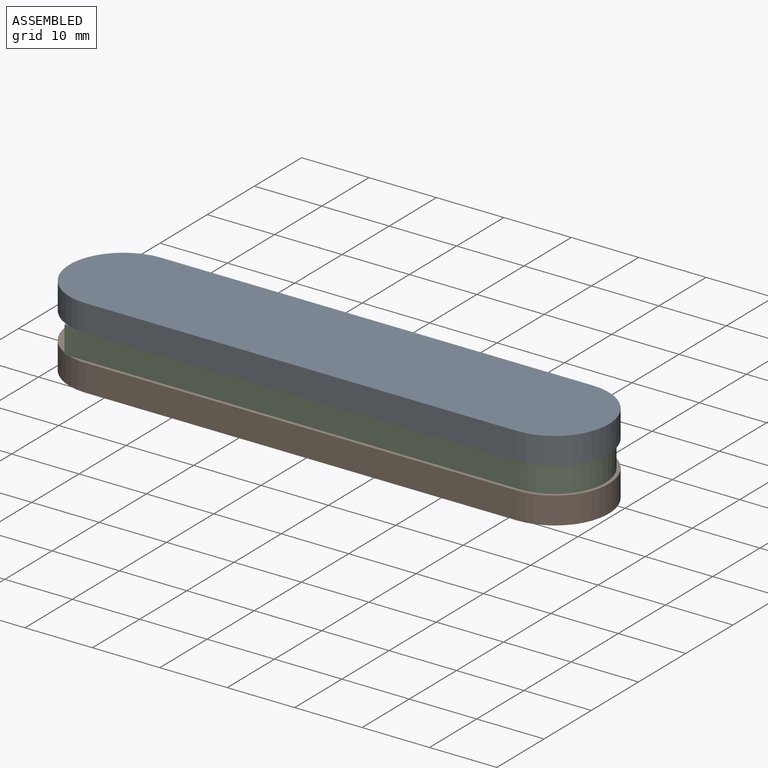
[diagram: assembled view]
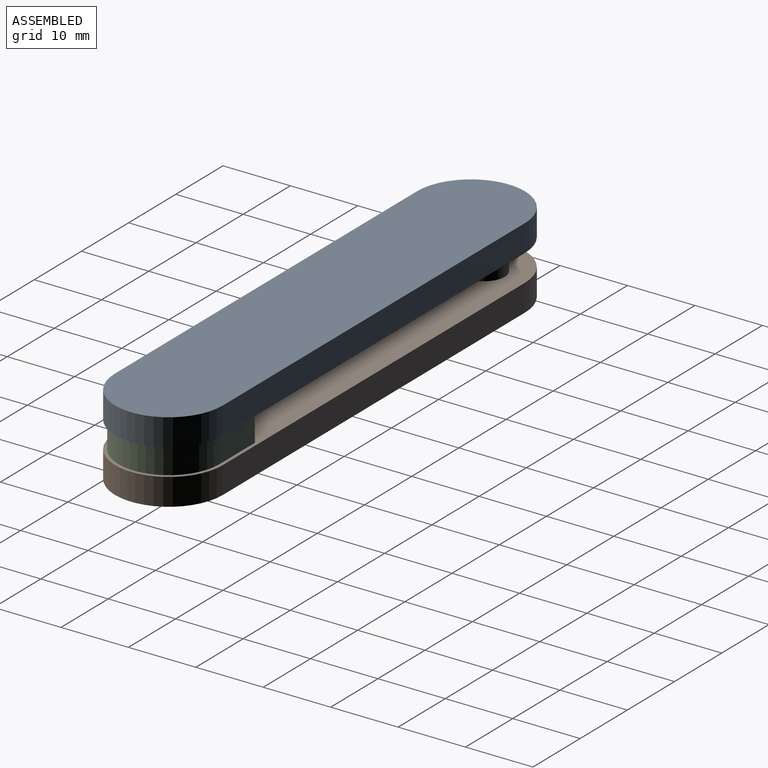
[diagram: assembled view, second angle]
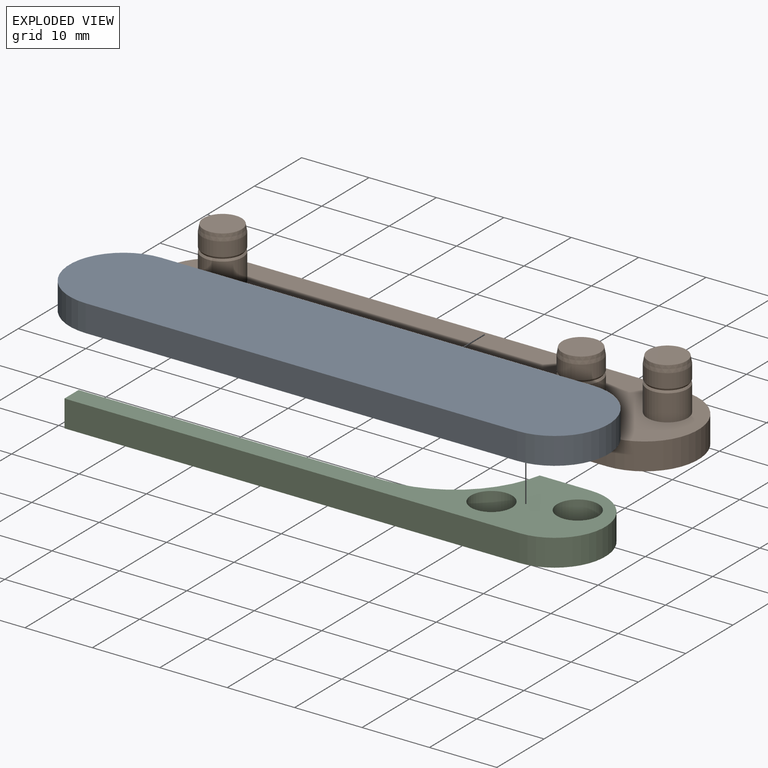
[diagram: exploded view]
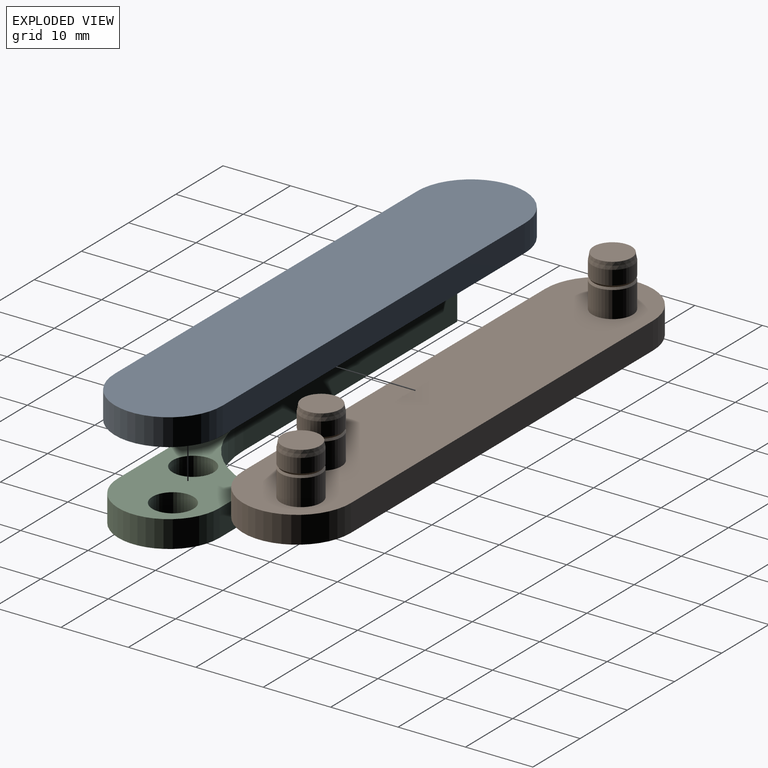
[diagram: exploded view, second angle]
ASSEMBLY  parts=3 mates=4
PART A: 12 faces, bbox 80x16x4 mm
  f0: plane 64x4mm, normal (0,1,0), area 256mm2, adj f1,f3,f4,f5
  f1: cylinder r=8mm len=16mm, axis (0,0,-1), area 100.5mm2, adj f0,f2,f4,f5
  f2: plane 64x4mm, normal (0,-1,0), area 256mm2, adj f1,f3,f4,f5
  f3: cylinder r=8mm len=16mm, axis (0,0,-1), area 100.5mm2, adj f0,f2,f4,f5
  f4: plane 80x16mm, normal (0,0,1), area 1225.1mm2, adj f0,f1,f2,f3
  f5: plane 80x16mm, normal (0,0,-1), area 1140.2mm2, adj f0,f1,f2,f3,f6,f8,f10
  f6: cylinder r=3mm len=6mm, axis (0,0,-1), area 67.9mm2, adj f5,f7
  f7: plane 6x6mm, normal (0,0,-1), area 28.3mm2, adj f6
  f8: cylinder r=3mm len=6mm, axis (0,0,-1), area 67.9mm2, adj f5,f9
  f9: plane 6x6mm, normal (0,0,-1), area 28.3mm2, adj f8
  f10: cylinder r=3mm len=6mm, axis (0,0,-1), area 67.9mm2, adj f5,f11
  f11: plane 6x6mm, normal (0,0,-1), area 28.3mm2, adj f10
PART B: 24 faces, bbox 80x16x11.6 mm
  f0: plane 64x4mm, normal (0,1,0), area 256mm2, adj f1,f3,f4,f5
  f1: cylinder r=8mm len=16mm, axis (0,0,-1), area 100.5mm2, adj f0,f2,f4,f5
  f2: plane 64x4mm, normal (0,-1,0), area 256mm2, adj f1,f3,f4,f5
  f3: cylinder r=8mm len=16mm, axis (0,0,-1), area 100.5mm2, adj f0,f2,f4,f5
  f4: plane 80x16mm, normal (0,0,1), area 1140.2mm2, adj f0,f1,f2,f3,f6,f12,f18
  f5: plane 80x16mm, normal (0,0,-1), area 1225.1mm2, adj f0,f1,f2,f3
  f6: cylinder r=3mm len=6mm, axis (0,0,1), area 73.5mm2, adj f4,f7
  f7: cone r=3mm half-angle=33.7deg, axis (0,0,-1), area 6.6mm2, adj f6,f8
  f8: cone r=2.8mm half-angle=33.7deg, axis (0,0,1), area 6.6mm2, adj f7,f9
  f9: cylinder r=3mm len=6mm, axis (0,0,1), area 39.6mm2, adj f8,f10
  f10: cone r=3mm half-angle=10deg, axis (0,0,-1), area 18.6mm2, adj f9,f11
  f11: plane 5.65x5.65mm, normal (0,0,1), area 25mm2, adj f10
  f12: cylinder r=3mm len=6mm, axis (0,0,1), area 73.5mm2, adj f4,f13
  f13: cone r=3mm half-angle=33.7deg, axis (0,0,-1), area 6.6mm2, adj f12,f14
  f14: cone r=2.8mm half-angle=33.7deg, axis (0,0,1), area 6.6mm2, adj f13,f15
  f15: cylinder r=3mm len=6mm, axis (0,0,1), area 39.6mm2, adj f14,f16
  f16: cone r=3mm half-angle=10deg, axis (0,0,-1), area 18.6mm2, adj f15,f17
  f17: plane 5.65x5.65mm, normal (0,0,1), area 25mm2, adj f16
  f18: cylinder r=3mm len=6mm, axis (0,0,1), area 73.5mm2, adj f4,f19
  f19: cone r=3mm half-angle=33.7deg, axis (0,0,-1), area 6.6mm2, adj f18,f20
  f20: cone r=2.8mm half-angle=33.7deg, axis (0,0,1), area 6.6mm2, adj f19,f21
  f21: cylinder r=3mm len=6mm, axis (0,0,1), area 39.6mm2, adj f20,f22
  f22: cone r=3mm half-angle=10deg, axis (0,0,-1), area 18.6mm2, adj f21,f23
  f23: plane 5.65x5.65mm, normal (0,0,1), area 25mm2, adj f22
PART C: 10 faces, bbox 75x15x4 mm
  f0: plane 67.5x4mm, normal (0,-1,0), area 270mm2, adj f1,f5,f6,f7
  f1: cylinder r=7.5mm len=15mm, axis (0,0,-1), area 94.2mm2, adj f0,f2,f6,f7
  f2: plane 7.5x4mm, normal (0,1,0), area 30mm2, adj f1,f3,f6,f7
  f3: cylinder r=15mm len=14.7mm, axis (0,0,-1), area 82.2mm2, adj f2,f4,f6,f7
  f4: plane 45.3x4mm, normal (0,1,0), area 181.2mm2, adj f3,f5,f6,f7
  f5: plane 4x3mm, normal (-1,0,0), area 12mm2, adj f0,f4,f6,f7
  f6: plane 75x15mm, normal (0,0,1), area 366.8mm2, adj f0,f1,f2,f3,f4,f5,f8,f9
  f7: plane 75x15mm, normal (0,0,-1), area 366.8mm2, adj f0,f1,f2,f3,f4,f5,f8,f9
  f8: cylinder r=3.05mm len=6.1mm, axis (0,0,1), area 76.7mm2, adj f6,f7
  f9: cylinder r=3.05mm len=6.1mm, axis (0,0,1), area 76.7mm2, adj f6,f7
PLACE A t=(-1.94,5.05,11.25)mm
PLACE B t=(-1.94,5.05,3.25)mm fixed
PLACE C t=(30.06,5.05,7.25)mm
MATE planar C.f6 <-> A.f1  axis (0,0,1) through (10.44,1.93,11.25)mm
MATE planar A.f2 <-> B.f2  axis (0,-1,0) through (-1.94,-2.95,13.25)mm
MATE revolute B.f12 <-> C.f8  axis (0,0,1) through (32.06,7.05,7.25)mm
MATE cylindrical B.f1 <-> A.f1  axis (0,0,-1) through (-33.94,5.05,5.25)mm
